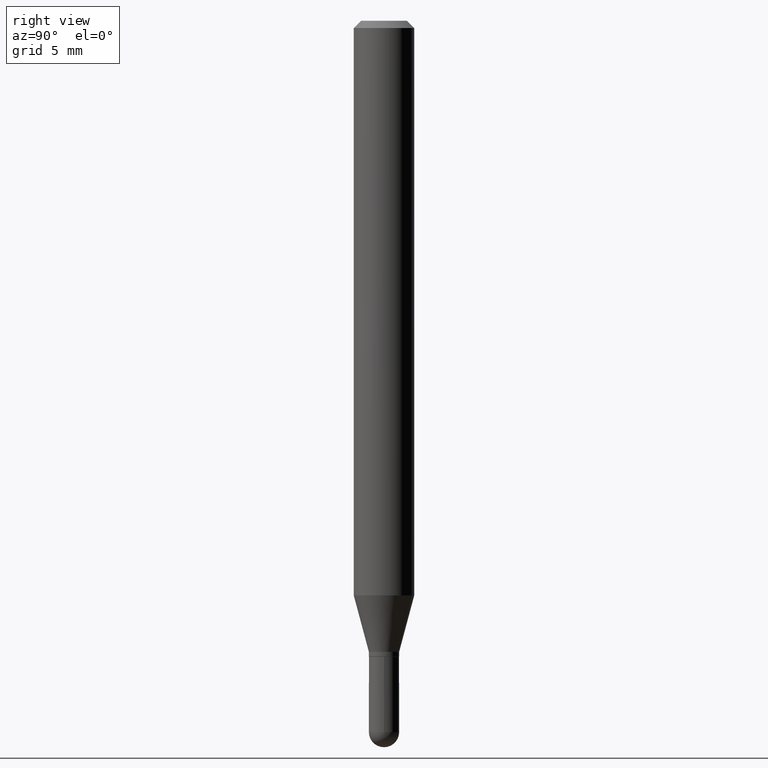
[diagram: clean part render]
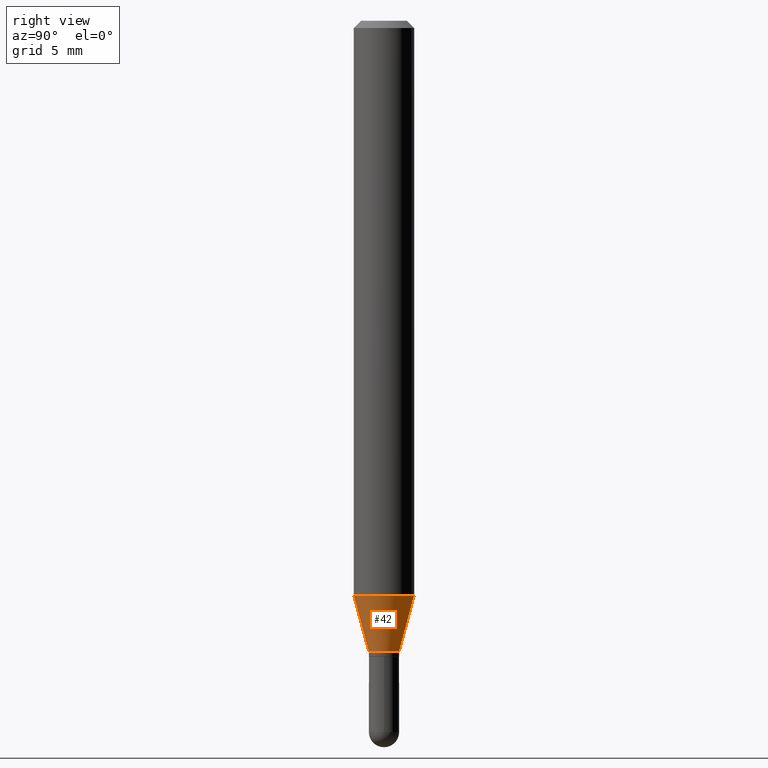
[diagram: same view with one face highlighted and labeled with its STEP entity id]
A machine part, right view. The second image highlights one B-rep face of the part: STEP entity #42.
In plain terms, the highlighted conical surface has half-angle 15 deg.
Its self-contained STEP definition (entity closure, byte-faithful):
#7 = CARTESIAN_POINT ( 'NONE',  ( 3.186393600944843674E-29, -4.549475014519310795E-15, -1.302999999999999936 ) ) ;
#8 = CARTESIAN_POINT ( 'NONE',  ( 4.440892098500914096E-16, 0.06249999999999582279, -1.186373412263473925 ) ) ;
#15 = VECTOR ( 'NONE', #259, 39.37007874015749564 ) ;
#21 = AXIS2_PLACEMENT_3D ( 'NONE', #215, #212, #248 ) ;
#42 = ADVANCED_FACE ( 'NONE', ( #323 ), #466, .T. ) ;
#52 = ORIENTED_EDGE ( 'NONE', *, *, #403, .T. ) ;
#67 = DIRECTION ( 'NONE',  ( -2.445428703718222053E-29, 3.491538767858258180E-15, 1.000000000000000000 ) ) ;
#70 = CARTESIAN_POINT ( 'NONE',  ( -4.364351673553628267E-16, -0.06250000000000417721, -1.186373412263473259 ) ) ;
#81 = ORIENTED_EDGE ( 'NONE', *, *, #114, .T. ) ;
#91 = CARTESIAN_POINT ( 'NONE',  ( 2.220446049250645389E-16, 0.03124999999999564584, -1.302999999999999936 ) ) ;
#114 = EDGE_CURVE ( 'NONE', #179, #329, #285, .T. ) ;
#116 = AXIS2_PLACEMENT_3D ( 'NONE', #7, #488, #161 ) ;
#126 = CIRCLE ( 'NONE', #21, 0.06250000000000000000 ) ;
#138 = CARTESIAN_POINT ( 'NONE',  ( 3.186393600944843674E-29, -4.549475014519310795E-15, -1.302999999999999936 ) ) ;
#161 = DIRECTION ( 'NONE',  ( -6.982962677686265922E-15, -1.000000000000000000, 0.000000000000000000 ) ) ;
#176 = EDGE_CURVE ( 'NONE', #430, #329, #126, .T. ) ;
#179 = VERTEX_POINT ( 'NONE', #363 ) ;
#184 = VERTEX_POINT ( 'NONE', #328 ) ;
#206 = CIRCLE ( 'NONE', #224, 0.03125000000000019429 ) ;
#212 = DIRECTION ( 'NONE',  ( -2.445428703718222053E-29, 3.491538767858258180E-15, 1.000000000000000000 ) ) ;
#215 = CARTESIAN_POINT ( 'NONE',  ( 2.901191595677230162E-29, -4.142268762074205999E-15, -1.186373412263473703 ) ) ;
#224 = AXIS2_PLACEMENT_3D ( 'NONE', #138, #67, #301 ) ;
#238 = EDGE_LOOP ( 'NONE', ( #52, #81, #302, #351 ) ) ;
#248 = DIRECTION ( 'NONE',  ( -6.982962677686265922E-15, -1.000000000000000000, 4.370956789862821150E-15 ) ) ;
#253 = DIRECTION ( 'NONE',  ( 1.839019923739599526E-15, 0.2588190451025248473, 0.9659258262890673130 ) ) ;
#259 = DIRECTION ( 'NONE',  ( -1.807323732225328562E-15, -0.2588190451025179639, 0.9659258262890689783 ) ) ;
#265 = CARTESIAN_POINT ( 'NONE',  ( -2.182175836776652910E-16, -0.03125000000000474620, -1.302999999999999936 ) ) ;
#285 = LINE ( 'NONE', #91, #370 ) ;
#301 = DIRECTION ( 'NONE',  ( -6.982962677686265922E-15, -1.000000000000000000, 0.000000000000000000 ) ) ;
#302 = ORIENTED_EDGE ( 'NONE', *, *, #176, .F. ) ;
#323 = FACE_OUTER_BOUND ( 'NONE', #238, .T. ) ;
#328 = CARTESIAN_POINT ( 'NONE',  ( -2.182175836776652910E-16, -0.03125000000000474620, -1.302999999999999936 ) ) ;
#329 = VERTEX_POINT ( 'NONE', #8 ) ;
#340 = LINE ( 'NONE', #265, #15 ) ;
#351 = ORIENTED_EDGE ( 'NONE', *, *, #414, .F. ) ;
#363 = CARTESIAN_POINT ( 'NONE',  ( 3.330669073875781221E-16, 0.03124999999999564237, -1.302999999999999936 ) ) ;
#370 = VECTOR ( 'NONE', #253, 39.37007874015747433 ) ;
#403 = EDGE_CURVE ( 'NONE', #184, #179, #206, .T. ) ;
#414 = EDGE_CURVE ( 'NONE', #184, #430, #340, .T. ) ;
#430 = VERTEX_POINT ( 'NONE', #70 ) ;
#466 = CONICAL_SURFACE ( 'NONE', #116, 0.03125000000000019429, 0.2617993877991501295 ) ;
#488 = DIRECTION ( 'NONE',  ( -2.445428703718222053E-29, 3.491538767858258180E-15, 1.000000000000000000 ) ) ;